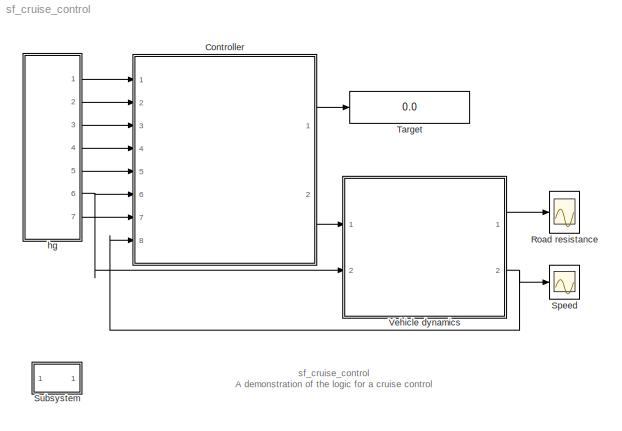
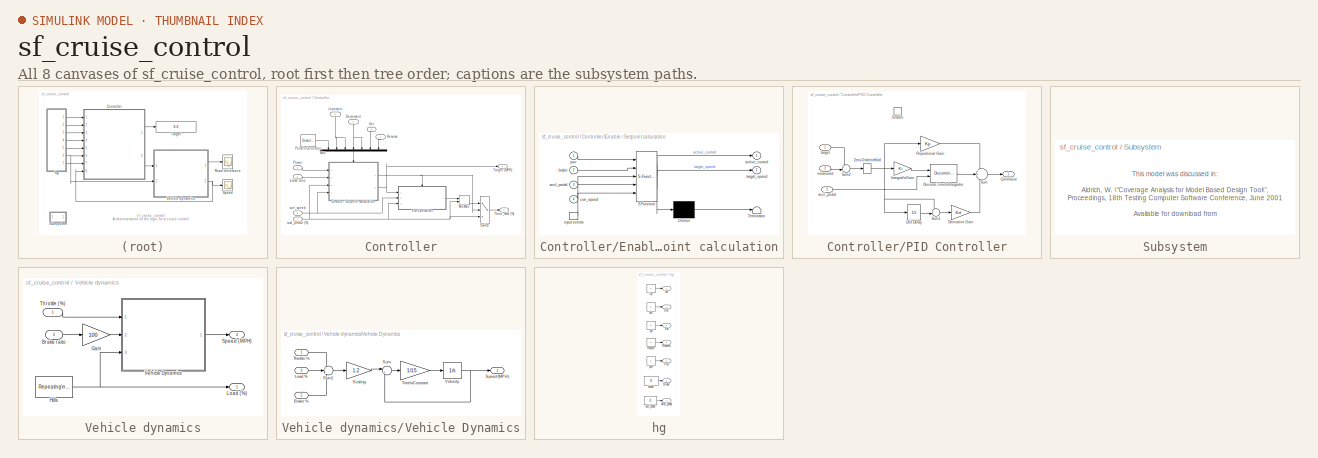
[diagram: thumbnail index - all 8 canvases of the model, root first then tree order]
MODEL sf_cruise_control
KIND model
CONFIG PreLoadFcn = Kp = 30; Ki = 10; Kd = 30; 
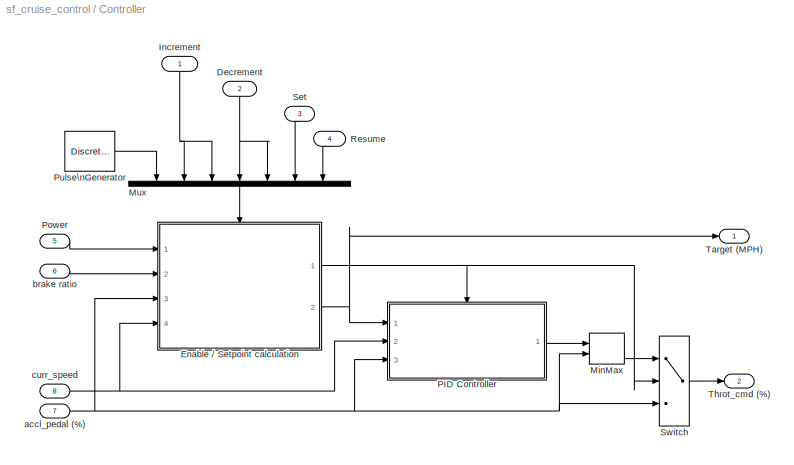
BLOCK [SubSystem] Controller
  MinAlgLoopOccurrences = off
  Ports = [8, 2]
  PropExecContextAcrossSSBoundary = on
  RTWSystemCode = Auto
  TreatAsAtomicUnit = off
BLOCK [Inport] Controller/Decrement
  IconDisplay = Port number
  LatchInput = off
  Port = 2
BLOCK [SubSystem] Controller/Enable // Setpoint calculation
  MaskDescription = Stateflow diagram
  MaskDisplay = plot(sf('Private','sfblk','xIcon'),sf('Private','sfblk','yIcon'));text(0.5,0,sf('Private', 'sfblk', 'tIcon'),'HorizontalAl','Center','VerticalAl','Bottom');
  MaskIconFrame = off
  MaskIconOpaque = off
  MaskIconRotate = none
  MaskIconUnits = autoscale
  MaskSelfModifiable = on
  MaskType = Stateflow
  MinAlgLoopOccurrences = off
  Ports = [4, 2, 0, 1]
  PropExecContextAcrossSSBoundary = on
  RTWSystemCode = Auto
  TreatAsAtomicUnit = on
BLOCK [Demux] Controller/Enable // Setpoint calculation/ Demux 
  Outputs = 1
  Ports = [1, 1]
BLOCK [S-Function] Controller/Enable // Setpoint calculation/ SFunction 
  FunctionName = sf_sfun
  PortCounts = [5 3]
  Ports = [5, 3]
  Tag = Stateflow S-Function sf_cruise_control 1
BLOCK [Terminator] Controller/Enable // Setpoint calculation/ Terminator 
BLOCK [TriggerPort] Controller/Enable // Setpoint calculation/ input events 
  Ports = [0, 1]
  ShowOutputPort = on
  TriggerType = either
  ZeroCross = off
BLOCK [Inport] Controller/Enable // Setpoint calculation/accl_pedal
  IconDisplay = Port number
  LatchInput = off
  Port = 3
BLOCK [Outport] Controller/Enable // Setpoint calculation/active_control
  IconDisplay = Port number
BLOCK [Inport] Controller/Enable // Setpoint calculation/brake
  IconDisplay = Port number
  LatchInput = off
  Port = 2
BLOCK [Inport] Controller/Enable // Setpoint calculation/curr_speed
  IconDisplay = Port number
  LatchInput = off
  Port = 4
BLOCK [Inport] Controller/Enable // Setpoint calculation/pwr
  IconDisplay = Port number
  LatchInput = off
  Port = 1
BLOCK [Outport] Controller/Enable // Setpoint calculation/target_speed
  IconDisplay = Port number
  Port = 2
BLOCK [Inport] Controller/Increment
  IconDisplay = Port number
  LatchInput = off
  Port = 1
BLOCK [MinMax] Controller/MinMax
  Function = max
  Inputs = 2
  Ports = [2, 1]
  ZeroCross = off
BLOCK [Mux] Controller/Mux
  DisplayOption = bar
  Inputs = 7
  Ports = [7, 1]
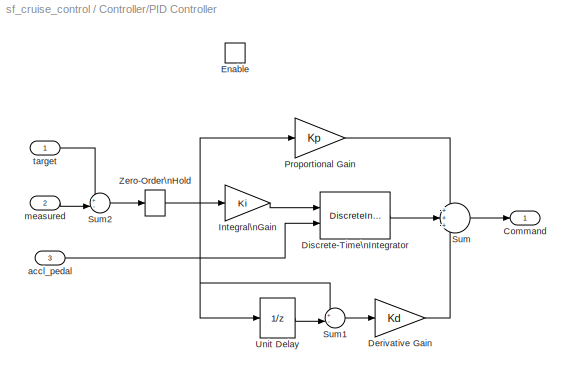
BLOCK [SubSystem] Controller/PID Controller
  MinAlgLoopOccurrences = off
  Ports = [3, 1, 1]
  PropExecContextAcrossSSBoundary = on
  RTWSystemCode = Auto
  TreatAsAtomicUnit = on
BLOCK [Outport] Controller/PID Controller/Command
  IconDisplay = Port number
BLOCK [Gain] Controller/PID Controller/Derivative Gain
  Gain = Kd
BLOCK [DiscreteIntegrator] Controller/PID Controller/Discrete-Time\nIntegrator
  ExternalReset = none
  ICPrevOutput = DiscIntNeverNeededParam
  ICPrevScaledInput = DiscIntNeverNeededParam
  InitialConditionSource = external
  IntegratorMethod = Integration: Forward Euler
  LowerSaturationLimit = -20
  Ports = [2, 1]
  SampleTime = 0.1
  UpperSaturationLimit = 20
BLOCK [EnablePort] Controller/PID Controller/Enable
  Ports = []
  StatesWhenEnabling = reset
  ZeroCross = off
BLOCK [Gain] Controller/PID Controller/Integral\nGain
  Gain = Ki
BLOCK [Gain] Controller/PID Controller/Proportional Gain
  Gain = Kp
BLOCK [Sum] Controller/PID Controller/Sum
  IconShape = round
  Inputs = +++
  Ports = [3, 1]
BLOCK [Sum] Controller/PID Controller/Sum1
  IconShape = round
  Inputs = +-|
  Ports = [2, 1]
BLOCK [Sum] Controller/PID Controller/Sum2
  IconShape = round
  Inputs = +-|
  Ports = [2, 1]
BLOCK [UnitDelay] Controller/PID Controller/Unit Delay
  SampleTime = 0.1
BLOCK [ZeroOrderHold] Controller/PID Controller/Zero-Order\nHold
  SampleTime = 0.1
BLOCK [Inport] Controller/PID Controller/accl_pedal
  IconDisplay = Port number
  LatchInput = off
  Port = 3
BLOCK [Inport] Controller/PID Controller/measured
  IconDisplay = Port number
  LatchInput = off
  Port = 2
BLOCK [Inport] Controller/PID Controller/target
  IconDisplay = Port number
  LatchInput = off
  Port = 1
BLOCK [Inport] Controller/Power
  IconDisplay = Port number
  LatchInput = off
  Port = 5
BLOCK [DiscretePulseGenerator] Controller/Pulse\nGenerator
  Ports = [0, 1]
  SampleTime = .05
BLOCK [Inport] Controller/Resume
  IconDisplay = Port number
  LatchInput = off
  Port = 4
BLOCK [Inport] Controller/Set
  IconDisplay = Port number
  LatchInput = off
  Port = 3
BLOCK [Switch] Controller/Switch
  SaturateOnIntegerOverflow = off
  Threshold = 1
  ZeroCross = off
BLOCK [Outport] Controller/Target (MPH)
  IconDisplay = Port number
BLOCK [Outport] Controller/Throt_cmd (%)
  IconDisplay = Port number
  Port = 2
BLOCK [Inport] Controller/accl_pedal (%)
  IconDisplay = Port number
  LatchInput = off
  Port = 7
BLOCK [Inport] Controller/brake ratio
  IconDisplay = Port number
  LatchInput = off
  Port = 6
BLOCK [Inport] Controller/curr_speed
  IconDisplay = Port number
  LatchInput = off
  Port = 8
BLOCK [Scope] Road resistance
  DataFormat = StructureWithTime
  NumInputPorts = 1
  Ports = [1]
  SampleInput = on
  SampleTime = 0.5
  TimeRange = 80
  YMax = 40
  YMin = -10
BLOCK [Scope] Speed
  DataFormat = StructureWithTime
  NumInputPorts = 1
  Ports = [1]
  SampleInput = on
  SampleTime = 0.5
  SaveName = ScopeData1
  TickLabels = on
  TimeRange = 80
  YMax = 100
  YMin = -20
BLOCK [SubSystem] Subsystem
  MaskDisplay = disp('Info')
  MaskIconFrame = on
  MaskIconOpaque = on
  MaskIconRotate = none
  MaskIconUnits = autoscale
  MinAlgLoopOccurrences = off
  Ports = []
  PropExecContextAcrossSSBoundary = on
  RTWSystemCode = Auto
  TreatAsAtomicUnit = off
BLOCK [Display] Target
  Decimation = 1
  Ports = [1]
BLOCK [SubSystem] Vehicle dynamics
  MinAlgLoopOccurrences = off
  Ports = [2, 2]
  PropExecContextAcrossSSBoundary = on
  RTWSystemCode = Auto
  TreatAsAtomicUnit = off
BLOCK [Inport] Vehicle dynamics/Brake ratio
  IconDisplay = Port number
  LatchInput = off
  Port = 2
BLOCK [Gain] Vehicle dynamics/Gain
  Gain = 100
BLOCK [Reference] Vehicle dynamics/Hills  REF=simulink/Sources/Repeating\nSequence
  Ports = [0, 1]
  SourceBlock = simulink/Sources/Repeating\nSequence
  SourceType = Repeating table
  rep_seq_t = [0 2 3 5 6 8]*10
  rep_seq_y = [10 15 5 20 10 -2]
BLOCK [Outport] Vehicle dynamics/Load (%)
  IconDisplay = Port number
BLOCK [Outport] Vehicle dynamics/Speed (MPH)
  IconDisplay = Port number
  Port = 2
BLOCK [Inport] Vehicle dynamics/Throttle (%)
  IconDisplay = Port number
  LatchInput = off
  Port = 1
BLOCK [SubSystem] Vehicle dynamics/Vehicle Dynamics
  MinAlgLoopOccurrences = off
  Ports = [3, 1]
  PropExecContextAcrossSSBoundary = on
  RTWSystemCode = Auto
  TreatAsAtomicUnit = off
BLOCK [Inport] Vehicle dynamics/Vehicle Dynamics/Brake %
  IconDisplay = Port number
  LatchInput = off
  Port = 2
BLOCK [Inport] Vehicle dynamics/Vehicle Dynamics/Load %
  IconDisplay = Port number
  LatchInput = off
  Port = 3
BLOCK [Gain] Vehicle dynamics/Vehicle Dynamics/Scaling
  Gain = 1.2
BLOCK [Outport] Vehicle dynamics/Vehicle Dynamics/Speed (MPH)
  IconDisplay = Port number
BLOCK [Sum] Vehicle dynamics/Vehicle Dynamics/Sum
  IconShape = round
  Inputs = |+-
  Ports = [2, 1]
BLOCK [Sum] Vehicle dynamics/Vehicle Dynamics/Sum1
  IconShape = round
  Inputs = +--
  Ports = [3, 1]
BLOCK [Inport] Vehicle dynamics/Vehicle Dynamics/Throttle %
  IconDisplay = Port number
  LatchInput = off
  Port = 1
BLOCK [Gain] Vehicle dynamics/Vehicle Dynamics/Time\nConstant
  Gain = 1/15
BLOCK [Integrator] Vehicle dynamics/Vehicle Dynamics/Velocity
  LimitOutput = on
  LowerSaturationLimit = 0
  Ports = [1, 1]
  ZeroCross = off
BLOCK [SubSystem] hg
  AttributesFormatString = <path>
  LoadFcn = figH = sf_cruise_control_ui;   \nset_param(gcb,'UserData',figH);
  MaskDisplay = disp('GUI \\n Signals')\n
  MaskIconFrame = on
  MaskIconOpaque = on
  MaskIconRotate = none
  MaskIconUnits = autoscale
  MinAlgLoopOccurrences = off
  OpenFcn = figH = get_param(gcb,'UserData');  \nif ~isempty(figH) figure(figH); end
  Ports = [0, 7]
  PropExecContextAcrossSSBoundary = on
  RTWSystemCode = Auto
  TreatAsAtomicUnit = off
BLOCK [Outport] hg/Accl_pedal
  IconDisplay = Port number
  Port = 7
BLOCK [Outport] hg/Brake
  IconDisplay = Port number
  Port = 6
BLOCK [Outport] hg/Dec
  IconDisplay = Port number
  Port = 2
BLOCK [Outport] hg/Inc
  IconDisplay = Port number
BLOCK [Outport] hg/Pwr
  IconDisplay = Port number
  Port = 5
BLOCK [Outport] hg/Resume
  IconDisplay = Port number
  Port = 4
BLOCK [Outport] hg/Set
  IconDisplay = Port number
  Port = 3
BLOCK [Constant] hg/accl_pedal
  Value = 0
BLOCK [Constant] hg/brake
  Value = 0
BLOCK [Constant] hg/dec
  Value = 0
BLOCK [Constant] hg/inc
  Value = 0
BLOCK [Constant] hg/pwr
  Value = 0
BLOCK [Constant] hg/resume
  Value = 0
BLOCK [Constant] hg/set
  Value = 0
ANNOTATION (root): sf_cruise_control\nA demonstration of the logic for a cruise control
ANNOTATION Subsystem: This model was discussed in: \n\nAldrich, W. \"Coverage Analysis for Model Based Design Tool\",\nProceedings, 18th Testing Computer Software Conference, June 2001\n\nAvailable for download from \nhttp://www.mathworks.com/products/simulink/technicalliterature.shtml
NET Controller/Decrement:1 -> Controller/Mux:4, Controller/Mux:5
LINE Controller/Enable // Setpoint calculation/ Demux :1 -> Controller/Enable // Setpoint calculation/ Terminator :1
LINE Controller/Enable // Setpoint calculation/ SFunction :1 -> Controller/Enable // Setpoint calculation/ Demux :1
LINE Controller/Enable // Setpoint calculation/ SFunction :2 -> Controller/Enable // Setpoint calculation/active_control:1
LINE Controller/Enable // Setpoint calculation/ SFunction :3 -> Controller/Enable // Setpoint calculation/target_speed:1
LINE Controller/Enable // Setpoint calculation/ input events :1 -> Controller/Enable // Setpoint calculation/ SFunction :5
LINE Controller/Enable // Setpoint calculation/accl_pedal:1 -> Controller/Enable // Setpoint calculation/ SFunction :3
LINE Controller/Enable // Setpoint calculation/brake:1 -> Controller/Enable // Setpoint calculation/ SFunction :2
LINE Controller/Enable // Setpoint calculation/curr_speed:1 -> Controller/Enable // Setpoint calculation/ SFunction :4
LINE Controller/Enable // Setpoint calculation/pwr:1 -> Controller/Enable // Setpoint calculation/ SFunction :1
NET Controller/Enable // Setpoint calculation:1 -> Controller/PID Controller:enable, Controller/Switch:2
NET Controller/Enable // Setpoint calculation:2 -> Controller/PID Controller:1, Controller/Target (MPH):1
NET Controller/Increment:1 -> Controller/Mux:2, Controller/Mux:3
LINE Controller/MinMax:1 -> Controller/Switch:1
LINE Controller/Mux:1 -> Controller/Enable // Setpoint calculation:trigger
LINE Controller/PID Controller/Derivative Gain:1 -> Controller/PID Controller/Sum:3
LINE Controller/PID Controller/Discrete-Time\nIntegrator:1 -> Controller/PID Controller/Sum:2
LINE Controller/PID Controller/Integral\nGain:1 -> Controller/PID Controller/Discrete-Time\nIntegrator:1
LINE Controller/PID Controller/Proportional Gain:1 -> Controller/PID Controller/Sum:1
LINE Controller/PID Controller/Sum1:1 -> Controller/PID Controller/Derivative Gain:1
LINE Controller/PID Controller/Sum2:1 -> Controller/PID Controller/Zero-Order\nHold:1
LINE Controller/PID Controller/Sum:1 -> Controller/PID Controller/Command:1
LINE Controller/PID Controller/Unit Delay:1 -> Controller/PID Controller/Sum1:2
NET Controller/PID Controller/Zero-Order\nHold:1 -> Controller/PID Controller/Integral\nGain:1, Controller/PID Controller/Proportional Gain:1, Controller/PID Controller/Sum1:1, Controller/PID Controller/Unit Delay:1
LINE Controller/PID Controller/accl_pedal:1 -> Controller/PID Controller/Discrete-Time\nIntegrator:2
LINE Controller/PID Controller/measured:1 -> Controller/PID Controller/Sum2:2
LINE Controller/PID Controller/target:1 -> Controller/PID Controller/Sum2:1
LINE Controller/PID Controller:1 -> Controller/MinMax:1
LINE Controller/Power:1 -> Controller/Enable // Setpoint calculation:1
LINE Controller/Pulse\nGenerator:1 -> Controller/Mux:1
LINE Controller/Resume:1 -> Controller/Mux:7
LINE Controller/Set:1 -> Controller/Mux:6
LINE Controller/Switch:1 -> Controller/Throt_cmd (%):1
NET Controller/accl_pedal (%):1 -> Controller/Enable // Setpoint calculation:3, Controller/MinMax:2, Controller/PID Controller:3, Controller/Switch:3
LINE Controller/brake ratio:1 -> Controller/Enable // Setpoint calculation:2
NET Controller/curr_speed:1 -> Controller/Enable // Setpoint calculation:4, Controller/PID Controller:2
LINE Controller:1 -> Target:1
LINE Controller:2 -> Vehicle dynamics:1
LINE Vehicle dynamics/Brake ratio:1 -> Vehicle dynamics/Gain:1
LINE Vehicle dynamics/Gain:1 -> Vehicle dynamics/Vehicle Dynamics:2
NET Vehicle dynamics/Hills:1 -> Vehicle dynamics/Load (%):1, Vehicle dynamics/Vehicle Dynamics:3
LINE Vehicle dynamics/Throttle (%):1 -> Vehicle dynamics/Vehicle Dynamics:1
LINE Vehicle dynamics/Vehicle Dynamics/Brake %:1 -> Vehicle dynamics/Vehicle Dynamics/Sum1:3
LINE Vehicle dynamics/Vehicle Dynamics/Load %:1 -> Vehicle dynamics/Vehicle Dynamics/Sum1:2
LINE Vehicle dynamics/Vehicle Dynamics/Scaling:1 -> Vehicle dynamics/Vehicle Dynamics/Sum:1
LINE Vehicle dynamics/Vehicle Dynamics/Sum1:1 -> Vehicle dynamics/Vehicle Dynamics/Scaling:1
LINE Vehicle dynamics/Vehicle Dynamics/Sum:1 -> Vehicle dynamics/Vehicle Dynamics/Time\nConstant:1
LINE Vehicle dynamics/Vehicle Dynamics/Throttle %:1 -> Vehicle dynamics/Vehicle Dynamics/Sum1:1
LINE Vehicle dynamics/Vehicle Dynamics/Time\nConstant:1 -> Vehicle dynamics/Vehicle Dynamics/Velocity:1
NET Vehicle dynamics/Vehicle Dynamics/Velocity:1 -> Vehicle dynamics/Vehicle Dynamics/Speed (MPH):1, Vehicle dynamics/Vehicle Dynamics/Sum:2
LINE Vehicle dynamics/Vehicle Dynamics:1 -> Vehicle dynamics/Speed (MPH):1
LINE Vehicle dynamics:1 -> Road resistance:1
NET Vehicle dynamics:2 -> Controller:8, Speed:1
LINE hg/accl_pedal:1 -> hg/Accl_pedal:1
LINE hg/brake:1 -> hg/Brake:1
LINE hg/dec:1 -> hg/Dec:1
LINE hg/inc:1 -> hg/Inc:1
LINE hg/pwr:1 -> hg/Pwr:1
LINE hg/resume:1 -> hg/Resume:1
LINE hg/set:1 -> hg/Set:1
LINE hg:1 -> Controller:1
LINE hg:2 -> Controller:2
LINE hg:3 -> Controller:3
LINE hg:4 -> Controller:4
LINE hg:5 -> Controller:5
NET hg:6 -> Controller:6, Vehicle dynamics:2
LINE hg:7 -> Controller:7
note: NET lines group one-source signal fan-out (src -> all destinations, sorted); 1:1 wires keep LINE
CHART Controller/Enable / Setpoint calculation states=10 transitions=18
  STATE_LABEL 'Set_Point_Calculation'
  STATE_LABEL 'Enable_logic'
  STATE_LABEL 'Hold'
  STATE_LABEL 'Increment\\nen: target_speed++;'
  STATE_LABEL 'Decrement\\nen: target_speed--;'
  STATE_LABEL 'Off'
  STATE_LABEL 'on'
  STATE_LABEL 'active_control'
  STATE_LABEL 'overide\\ntarget_speed = 0;'
  STATE_LABEL 'no_target'
note: 1 file-system path scrubbed to <path> (not preserved elsewhere — flat text is the only slx artifact)
